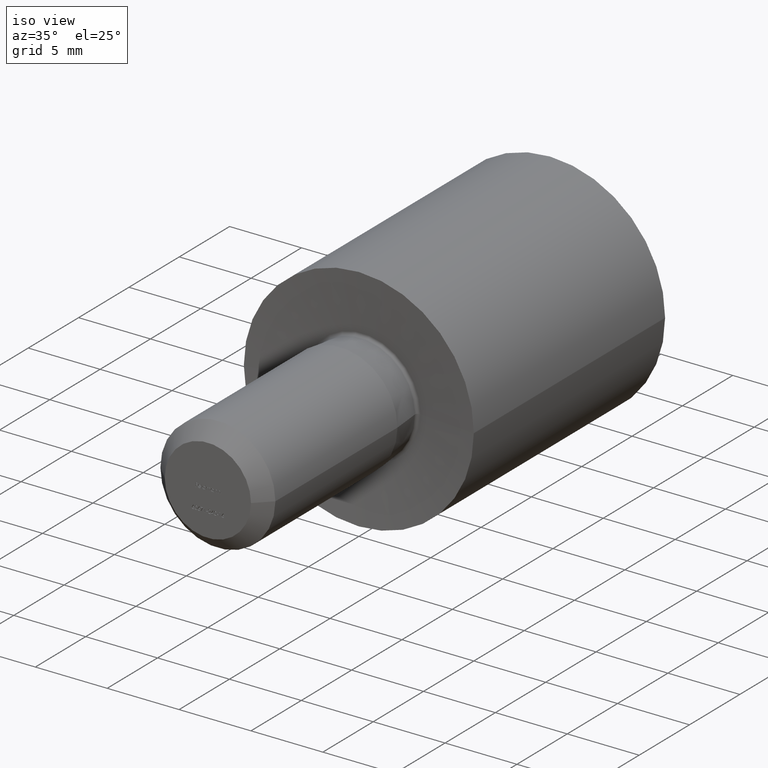
[diagram: clean part render]
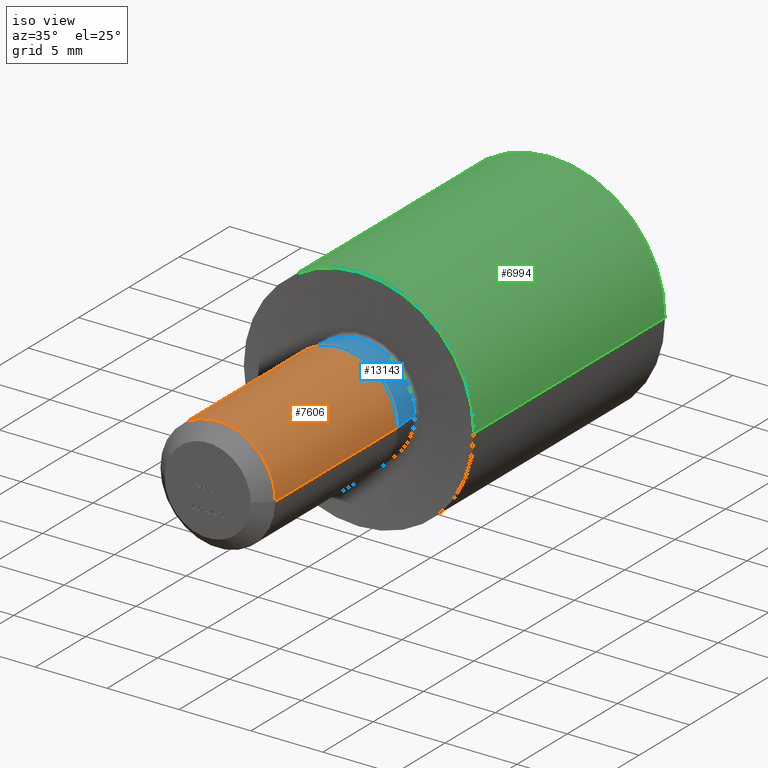
[diagram: same view with three faces highlighted in distinct colors, each labeled with its STEP entity id]
A machine part, iso view with three faces highlighted in distinct colors.
Their STEP definitions:

[orange] entity #7606 — the highlighted cylindrical surface (partial cylindrical patch) has radius 4 mm, axis along (-0, -1, -0).
#864 = DIRECTION ( 'NONE',  ( -4.956352788505162800E-017, -1.000000000000000000, -0.0000000000000000000 ) ) ;
#915 = EDGE_CURVE ( 'NONE', #4997, #10441, #7709, .T. ) ;
#1002 = CYLINDRICAL_SURFACE ( 'NONE', #10224, 4.000000000000000000 ) ;
#1609 = VECTOR ( 'NONE', #2340, 1000.000000000000000 ) ;
#2340 = DIRECTION ( 'NONE',  ( -4.956352788505162800E-017, -1.000000000000000000, -0.0000000000000000000 ) ) ;
#3042 = CARTESIAN_POINT ( 'NONE',  ( -3.999999999999996400, -1.870613216123589300, 4.898587196589410900E-016 ) ) ;
#3172 = ORIENTED_EDGE ( 'NONE', *, *, #915, .T. ) ;
#3209 = LINE ( 'NONE', #7346, #1609 ) ;
#3607 = DIRECTION ( 'NONE',  ( -4.956352788505162800E-017, -1.000000000000000000, -0.0000000000000000000 ) ) ;
#4373 = DIRECTION ( 'NONE',  ( 1.000000000000000000, 0.0000000000000000000, 0.0000000000000000000 ) ) ;
#4397 = VERTEX_POINT ( 'NONE', #10296 ) ;
#4997 = VERTEX_POINT ( 'NONE', #11235 ) ;
#5215 = ORIENTED_EDGE ( 'NONE', *, *, #11272, .T. ) ;
#5600 = EDGE_CURVE ( 'NONE', #6156, #4397, #9153, .T. ) ;
#5610 = CARTESIAN_POINT ( 'NONE',  ( -4.000000000000000000, -15.00000000000000000, 4.898587196589412800E-016 ) ) ;
#6156 = VERTEX_POINT ( 'NONE', #7537 ) ;
#6250 = CARTESIAN_POINT ( 'NONE',  ( 0.0000000000000000000, -15.00000000000000000, 0.0000000000000000000 ) ) ;
#6299 = DIRECTION ( 'NONE',  ( -4.956352788505162800E-017, -1.000000000000000000, -0.0000000000000000000 ) ) ;
#6795 = AXIS2_PLACEMENT_3D ( 'NONE', #6951, #864, #9126 ) ;
#6951 = CARTESIAN_POINT ( 'NONE',  ( 6.507387279762867300E-016, -1.870613216123589600, 0.0000000000000000000 ) ) ;
#7346 = CARTESIAN_POINT ( 'NONE',  ( 4.000000000000000000, -15.00000000000000000, 0.0000000000000000000 ) ) ;
#7537 = CARTESIAN_POINT ( 'NONE',  ( 4.000000000000001800, -13.99999999999999800, 4.898587196589414800E-016 ) ) ;
#7606 = ADVANCED_FACE ( 'NONE', ( #12819 ), #1002, .T. ) ;
#7655 = EDGE_CURVE ( 'NONE', #4997, #6156, #3209, .T. ) ;
#7709 = CIRCLE ( 'NONE', #6795, 3.999999999999997300 ) ;
#8201 = DIRECTION ( 'NONE',  ( -4.956352788505162800E-017, -1.000000000000000000, -0.0000000000000000000 ) ) ;
#8359 = EDGE_LOOP ( 'NONE', ( #3172, #5215, #10545, #12081 ) ) ;
#8648 = AXIS2_PLACEMENT_3D ( 'NONE', #12146, #8201, #9145 ) ;
#9087 = VECTOR ( 'NONE', #3607, 1000.000000000000000 ) ;
#9126 = DIRECTION ( 'NONE',  ( 1.000000000000000000, -5.421010862427525900E-017, 0.0000000000000000000 ) ) ;
#9145 = DIRECTION ( 'NONE',  ( 1.000000000000000000, 0.0000000000000000000, 0.0000000000000000000 ) ) ;
#9153 = CIRCLE ( 'NONE', #8648, 4.000000000000001800 ) ;
#9575 = LINE ( 'NONE', #5610, #9087 ) ;
#10224 = AXIS2_PLACEMENT_3D ( 'NONE', #6250, #6299, #4373 ) ;
#10296 = CARTESIAN_POINT ( 'NONE',  ( -4.000000000000001800, -13.99999999999999800, 0.0000000000000000000 ) ) ;
#10441 = VERTEX_POINT ( 'NONE', #3042 ) ;
#10545 = ORIENTED_EDGE ( 'NONE', *, *, #5600, .F. ) ;
#11235 = CARTESIAN_POINT ( 'NONE',  ( 3.999999999999998200, -1.870613216123589800, 0.0000000000000000000 ) ) ;
#11272 = EDGE_CURVE ( 'NONE', #10441, #4397, #9575, .T. ) ;
#12081 = ORIENTED_EDGE ( 'NONE', *, *, #7655, .F. ) ;
#12146 = CARTESIAN_POINT ( 'NONE',  ( 4.956352788505168300E-017, -13.99999999999999800, 0.0000000000000000000 ) ) ;
#12819 = FACE_OUTER_BOUND ( 'NONE', #8359, .T. ) ;

[blue] entity #13143 — the highlighted conical surface has half-angle 5.683 deg.
#397 = VERTEX_POINT ( 'NONE', #11508 ) ;
#824 = CIRCLE ( 'NONE', #12516, 3.800982901646328600 ) ;
#864 = DIRECTION ( 'NONE',  ( -4.956352788505162800E-017, -1.000000000000000000, -0.0000000000000000000 ) ) ;
#915 = EDGE_CURVE ( 'NONE', #4997, #10441, #7709, .T. ) ;
#1783 = VECTOR ( 'NONE', #11666, 999.9999999999998900 ) ;
#1885 = CARTESIAN_POINT ( 'NONE',  ( 3.999999999999998200, -1.870613216123589800, 0.0000000000000000000 ) ) ;
#1999 = ORIENTED_EDGE ( 'NONE', *, *, #2655, .T. ) ;
#2027 = FACE_OUTER_BOUND ( 'NONE', #4887, .T. ) ;
#2084 = VERTEX_POINT ( 'NONE', #7947 ) ;
#2267 = LINE ( 'NONE', #9268, #1783 ) ;
#2655 = EDGE_CURVE ( 'NONE', #397, #10441, #2267, .T. ) ;
#3042 = CARTESIAN_POINT ( 'NONE',  ( -3.999999999999996400, -1.870613216123589300, 4.898587196589410900E-016 ) ) ;
#3305 = EDGE_CURVE ( 'NONE', #2084, #397, #824, .T. ) ;
#3504 = VECTOR ( 'NONE', #11039, 1000.000000000000200 ) ;
#3585 = ORIENTED_EDGE ( 'NONE', *, *, #3305, .T. ) ;
#4761 = EDGE_CURVE ( 'NONE', #2084, #4997, #6714, .T. ) ;
#4858 = DIRECTION ( 'NONE',  ( 1.000000000000000000, -5.421010862427525900E-017, 0.0000000000000000000 ) ) ;
#4887 = EDGE_LOOP ( 'NONE', ( #3585, #1999, #6289, #8422 ) ) ;
#4901 = DIRECTION ( 'NONE',  ( -4.956352788505162800E-017, -1.000000000000000000, -0.0000000000000000000 ) ) ;
#4997 = VERTEX_POINT ( 'NONE', #11235 ) ;
#5543 = DIRECTION ( 'NONE',  ( 1.000000000000000000, -4.991745164199048300E-017, 0.0000000000000000000 ) ) ;
#5928 = CARTESIAN_POINT ( 'NONE',  ( 6.507387279762867300E-016, -1.870613216123589600, 0.0000000000000000000 ) ) ;
#6289 = ORIENTED_EDGE ( 'NONE', *, *, #915, .F. ) ;
#6427 = CARTESIAN_POINT ( 'NONE',  ( 7.498657837463900400E-016, 0.1293867838764121100, 0.0000000000000000000 ) ) ;
#6591 = DIRECTION ( 'NONE',  ( -4.956352788505162800E-017, -1.000000000000000000, -0.0000000000000000000 ) ) ;
#6714 = LINE ( 'NONE', #1885, #3504 ) ;
#6795 = AXIS2_PLACEMENT_3D ( 'NONE', #6951, #864, #9126 ) ;
#6951 = CARTESIAN_POINT ( 'NONE',  ( 6.507387279762867300E-016, -1.870613216123589600, 0.0000000000000000000 ) ) ;
#7709 = CIRCLE ( 'NONE', #6795, 3.999999999999997300 ) ;
#7947 = CARTESIAN_POINT ( 'NONE',  ( 3.800982901646329500, 0.1293867838764119500, 0.0000000000000000000 ) ) ;
#8422 = ORIENTED_EDGE ( 'NONE', *, *, #4761, .F. ) ;
#9126 = DIRECTION ( 'NONE',  ( 1.000000000000000000, -5.421010862427525900E-017, 0.0000000000000000000 ) ) ;
#9268 = CARTESIAN_POINT ( 'NONE',  ( -3.999999999999996400, -1.870613216123589300, 4.898587196589409900E-016 ) ) ;
#10441 = VERTEX_POINT ( 'NONE', #3042 ) ;
#11039 = DIRECTION ( 'NONE',  ( 0.09901951359278476900, -0.9950854917683446000, 0.0000000000000000000 ) ) ;
#11235 = CARTESIAN_POINT ( 'NONE',  ( 3.999999999999998200, -1.870613216123589800, 0.0000000000000000000 ) ) ;
#11508 = CARTESIAN_POINT ( 'NONE',  ( -3.800982901646327700, 0.1293867838764123100, 4.776724370352202000E-016 ) ) ;
#11656 = AXIS2_PLACEMENT_3D ( 'NONE', #5928, #4901, #4858 ) ;
#11666 = DIRECTION ( 'NONE',  ( -0.09901951359278486600, -0.9950854917683447100, 1.212639303745317700E-017 ) ) ;
#12516 = AXIS2_PLACEMENT_3D ( 'NONE', #6427, #6591, #5543 ) ;
#12589 = CONICAL_SURFACE ( 'NONE', #11656, 3.999999999999997300, 0.09918204387849272100 ) ;
#13143 = ADVANCED_FACE ( 'NONE', ( #2027 ), #12589, .T. ) ;

[green] entity #6994 — the highlighted cylindrical surface (partial cylindrical patch) has radius 8 mm, axis along (-0, -1, -0).
#200 = AXIS2_PLACEMENT_3D ( 'NONE', #993, #2003, #8119 ) ;
#269 = ORIENTED_EDGE ( 'NONE', *, *, #434, .T. ) ;
#434 = EDGE_CURVE ( 'NONE', #10060, #6466, #5590, .T. ) ;
#690 = DIRECTION ( 'NONE',  ( -4.956352788505160300E-017, -1.000000000000000000, -0.0000000000000000000 ) ) ;
#993 = CARTESIAN_POINT ( 'NONE',  ( 7.434529182757744400E-016, 0.0000000000000000000, 0.0000000000000000000 ) ) ;
#1550 = DIRECTION ( 'NONE',  ( -4.956352788505162800E-017, -1.000000000000000000, -0.0000000000000000000 ) ) ;
#1995 = EDGE_LOOP ( 'NONE', ( #5939, #269, #8243, #5501 ) ) ;
#2003 = DIRECTION ( 'NONE',  ( -4.956352788505162800E-017, -1.000000000000000000, -0.0000000000000000000 ) ) ;
#2130 = CIRCLE ( 'NONE', #200, 8.000000000000001800 ) ;
#2805 = CIRCLE ( 'NONE', #7272, 8.000000000000000000 ) ;
#3625 = DIRECTION ( 'NONE',  ( -1.000000000000000000, 0.0000000000000000000, 0.0000000000000000000 ) ) ;
#3686 = VECTOR ( 'NONE', #12626, 1000.000000000000000 ) ;
#3819 = AXIS2_PLACEMENT_3D ( 'NONE', #6601, #1550, #8557 ) ;
#4177 = CARTESIAN_POINT ( 'NONE',  ( 8.000000000000001800, 19.00000000000000400, 0.0000000000000000000 ) ) ;
#5338 = EDGE_CURVE ( 'NONE', #12419, #6466, #2130, .T. ) ;
#5501 = ORIENTED_EDGE ( 'NONE', *, *, #9637, .F. ) ;
#5590 = LINE ( 'NONE', #9619, #3686 ) ;
#5696 = CARTESIAN_POINT ( 'NONE',  ( 8.000000000000000000, -4.336808689942017700E-016, 0.0000000000000000000 ) ) ;
#5939 = ORIENTED_EDGE ( 'NONE', *, *, #11886, .T. ) ;
#6019 = LINE ( 'NONE', #11987, #9439 ) ;
#6466 = VERTEX_POINT ( 'NONE', #6838 ) ;
#6601 = CARTESIAN_POINT ( 'NONE',  ( 0.0000000000000000000, -15.00000000000000000, 0.0000000000000000000 ) ) ;
#6838 = CARTESIAN_POINT ( 'NONE',  ( -8.000000000000000000, 4.336808689942017700E-016, 9.797174393178825700E-016 ) ) ;
#6994 = ADVANCED_FACE ( 'NONE', ( #12008 ), #10275, .T. ) ;
#7272 = AXIS2_PLACEMENT_3D ( 'NONE', #7859, #690, #3625 ) ;
#7859 = CARTESIAN_POINT ( 'NONE',  ( 1.685159948091755500E-015, 19.00000000000000400, 0.0000000000000000000 ) ) ;
#8119 = DIRECTION ( 'NONE',  ( 1.000000000000000000, -4.956352788505162800E-017, 0.0000000000000000000 ) ) ;
#8243 = ORIENTED_EDGE ( 'NONE', *, *, #5338, .F. ) ;
#8557 = DIRECTION ( 'NONE',  ( 1.000000000000000000, 0.0000000000000000000, 0.0000000000000000000 ) ) ;
#9439 = VECTOR ( 'NONE', #10807, 1000.000000000000000 ) ;
#9619 = CARTESIAN_POINT ( 'NONE',  ( -8.000000000000000000, -15.00000000000000000, 9.797174393178825700E-016 ) ) ;
#9637 = EDGE_CURVE ( 'NONE', #12555, #12419, #6019, .T. ) ;
#10060 = VERTEX_POINT ( 'NONE', #10097 ) ;
#10097 = CARTESIAN_POINT ( 'NONE',  ( -7.999999999999998200, 19.00000000000000400, 9.797174393178825700E-016 ) ) ;
#10275 = CYLINDRICAL_SURFACE ( 'NONE', #3819, 8.000000000000000000 ) ;
#10807 = DIRECTION ( 'NONE',  ( -4.956352788505162800E-017, -1.000000000000000000, -0.0000000000000000000 ) ) ;
#11886 = EDGE_CURVE ( 'NONE', #12555, #10060, #2805, .T. ) ;
#11987 = CARTESIAN_POINT ( 'NONE',  ( 8.000000000000000000, -15.00000000000000000, 0.0000000000000000000 ) ) ;
#12008 = FACE_OUTER_BOUND ( 'NONE', #1995, .T. ) ;
#12419 = VERTEX_POINT ( 'NONE', #5696 ) ;
#12555 = VERTEX_POINT ( 'NONE', #4177 ) ;
#12626 = DIRECTION ( 'NONE',  ( -4.956352788505162800E-017, -1.000000000000000000, -0.0000000000000000000 ) ) ;